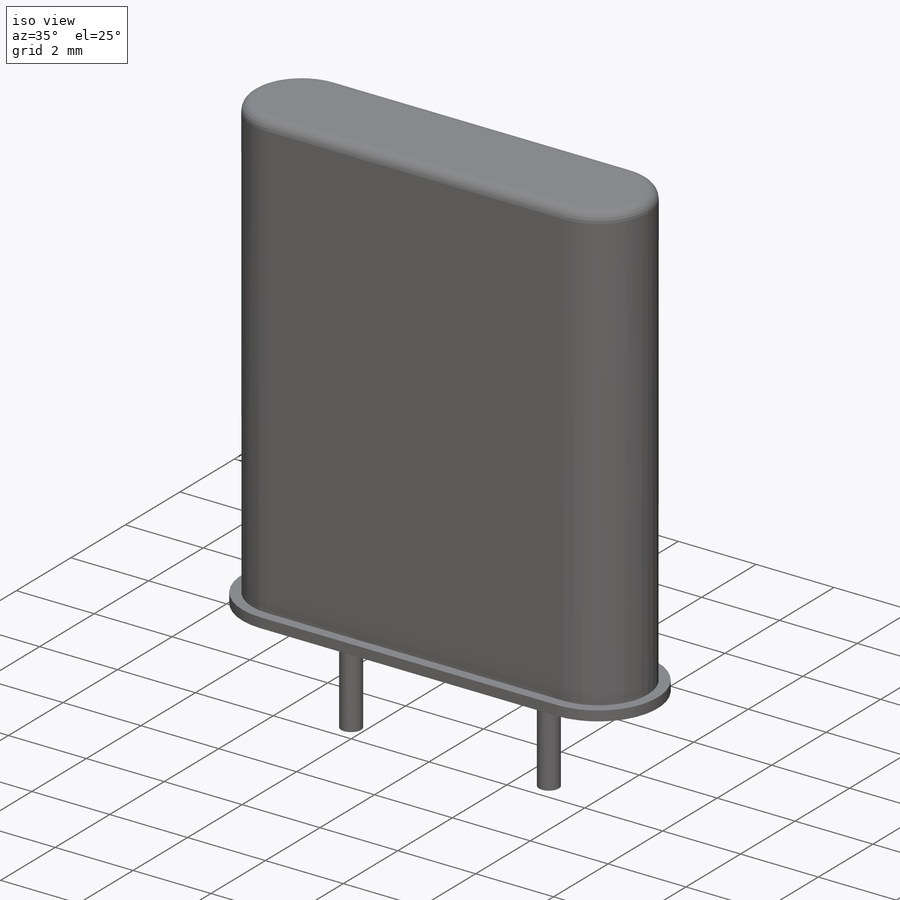
[diagram: iso view]
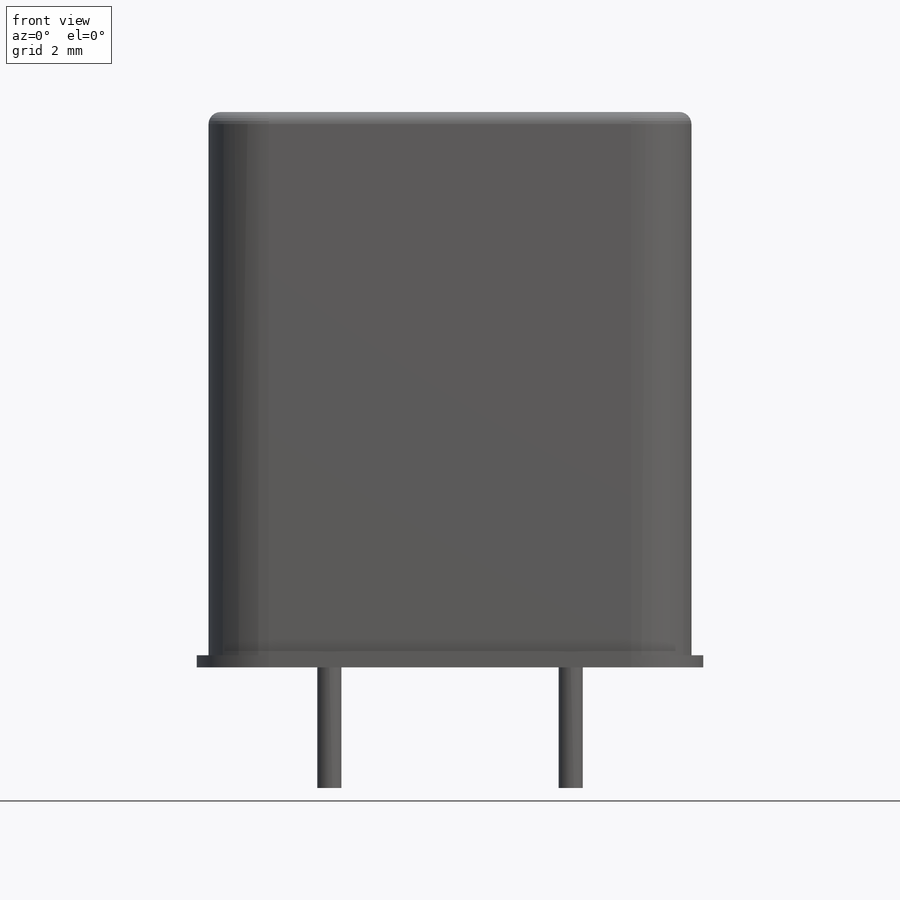
[diagram: front view]
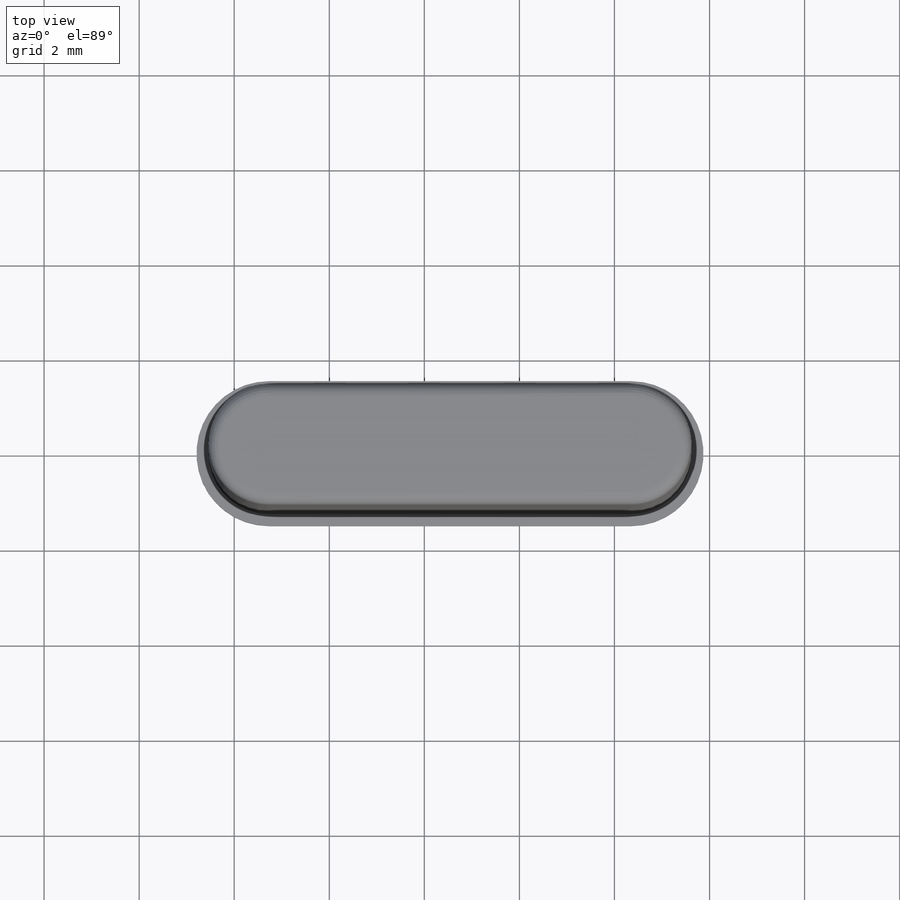
[diagram: top view]
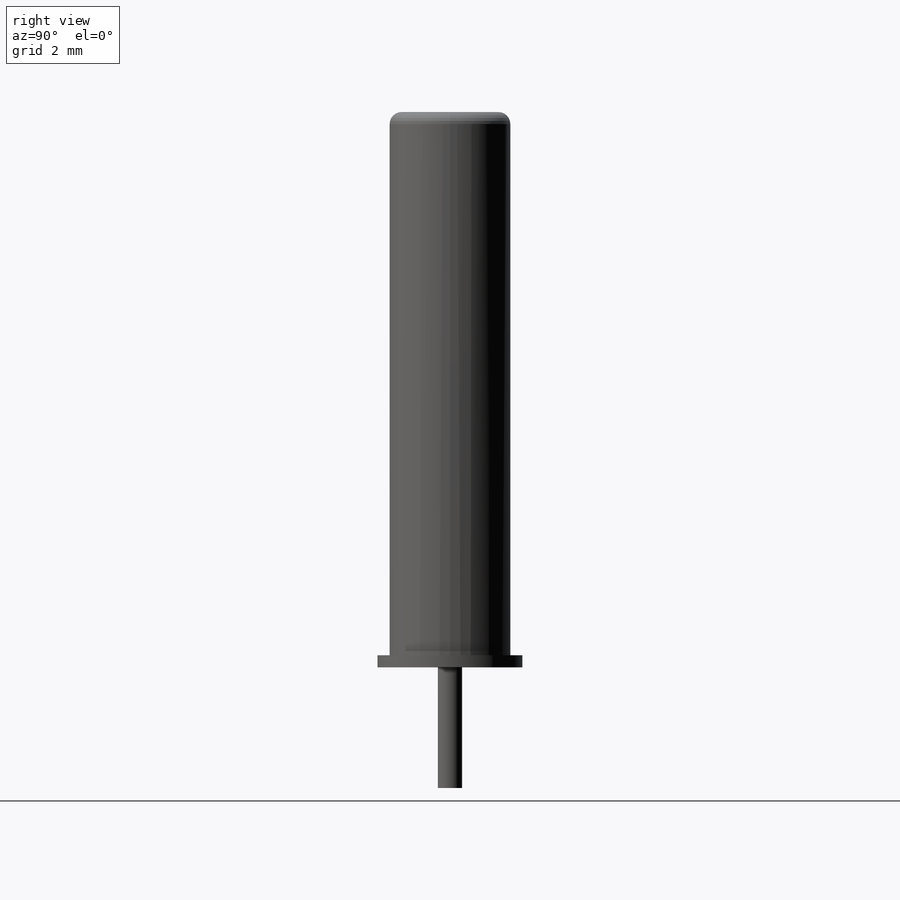
[diagram: right view]
SOLIDWORKS PART (.sldprt)
format: sldprt  version: not decoded by parser v0  size: 200,192 bytes
history: native  units: mm
features: sketch x4, plane x3, extrude x3, fillet x2, material x1, mirror x1 (+12 scaffold rows collapsed)
feature tree (26):
  scaffold x12  (default folders/planes/origin — collapsed)
  material  "Material <not specified>"
  plane  "Plane 1"  Offset=0.508mm
  sketch  "Sketch1"  dims[D1=0.508mm]
  extrude  "Base-Extrude"  Depth=3.048mm
  sketch  "Sketch2"  dims[D1=10.16mm D2=11.684mm D3=2.54mm]
  extrude  "Boss-Extrude1"  Depth=2.54mm
  plane  "Centreline"  Offset=5.08mm
  fillet  "Fillet1"  Radius=1.27mm
  fillet  "Fillet2"  Radius=0.254mm
  sketch  "Sketch4"  dims[D1=0.254mm]
  extrude  "Boss-Extrude3"  Depth=0.254mm
  mirror  "Mirror1"
  plane  "Board Plane"  Offset=0.762mm
  sketch  "Component_Outline"
decode coverage: 8 of 10 modeling features carry decoded parameters
note: suppression state not decoded; provenance and decode notes live in map.json
